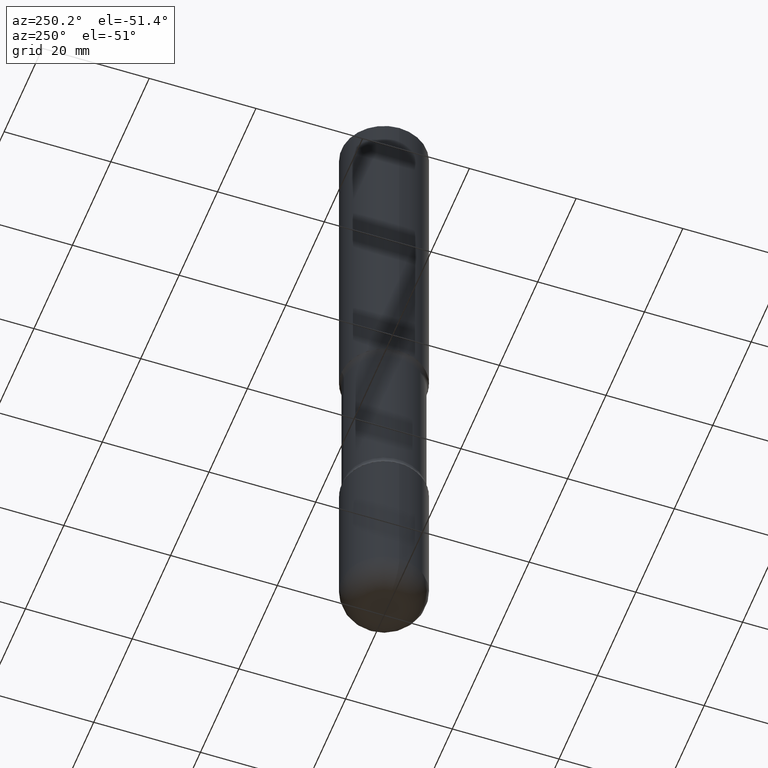
[diagram: clean part render]
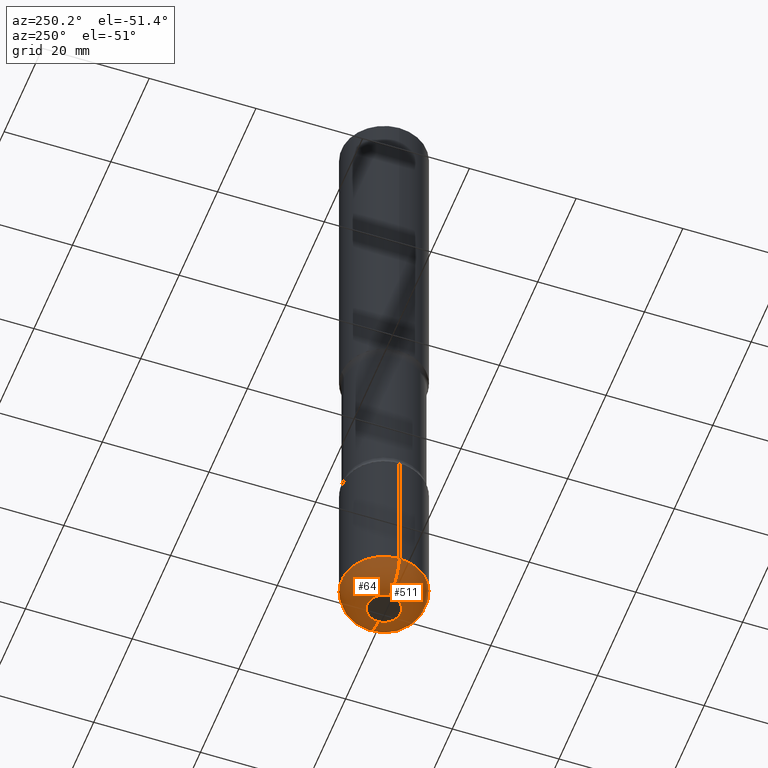
[diagram: same view with one multi-face feature highlighted, each face labeled with its STEP entity id]
A machine part, auxiliary view. The highlighted faces form ONE feature: a constant-radius fillet chain: 2 tangent blend faces with common blend radius 4.826 mm. The faces share edges in the B-rep.
Their STEP definitions:
[1] entity #64 (Torus):
#4 = DIRECTION ( 'NONE',  ( -2.445468806185136597E-29, 3.491481338843145583E-15, 1.000000000000000000 ) ) ;
#13 = CIRCLE ( 'NONE', #206, 0.3125000000000002220 ) ;
#18 = DIRECTION ( 'NONE',  ( -2.445468806185136597E-29, 3.491481338843145583E-15, 1.000000000000000000 ) ) ;
#54 = ORIENTED_EDGE ( 'NONE', *, *, #382, .F. ) ;
#64 = ADVANCED_FACE ( 'NONE', ( #162 ), #367, .T. ) ;
#69 = AXIS2_PLACEMENT_3D ( 'NONE', #490, #18, #273 ) ;
#86 = DIRECTION ( 'NONE',  ( -6.982962677686266711E-15, -1.000000000000000000, 3.491481338843145583E-15 ) ) ;
#96 = CARTESIAN_POINT ( 'NONE',  ( 0.3125000000000001665, -1.897620107661249005E-14, -4.810000000000000497 ) ) ;
#99 = AXIS2_PLACEMENT_3D ( 'NONE', #310, #86, #550 ) ;
#112 = EDGE_CURVE ( 'NONE', #348, #518, #341, .T. ) ;
#139 = DIRECTION ( 'NONE',  ( 1.000000000000000000, -6.982962677686264344E-15, 0.000000000000000000 ) ) ;
#149 = CARTESIAN_POINT ( 'NONE',  ( -0.1225000000000003308, -1.558028551674741034E-14, -5.000000000000000000 ) ) ;
#162 = FACE_OUTER_BOUND ( 'NONE', #361, .T. ) ;
#179 = CARTESIAN_POINT ( 'NONE',  ( 0.1225000000000003308, -1.831281962223229977E-14, -5.000000000000000000 ) ) ;
#186 = EDGE_CURVE ( 'NONE', #389, #388, #258, .T. ) ;
#206 = AXIS2_PLACEMENT_3D ( 'NONE', #520, #378, #139 ) ;
#257 = ORIENTED_EDGE ( 'NONE', *, *, #112, .T. ) ;
#258 = CIRCLE ( 'NONE', #99, 0.1899999999999998634 ) ;
#265 = DIRECTION ( 'NONE',  ( 1.000000000000000000, -6.982962677686262766E-15, 0.000000000000000000 ) ) ;
#270 = AXIS2_PLACEMENT_3D ( 'NONE', #540, #281, #286 ) ;
#271 = CIRCLE ( 'NONE', #465, 0.1225000000000003308 ) ;
#273 = DIRECTION ( 'NONE',  ( 1.000000000000000000, -6.982962677686265922E-15, 4.883557194083112340E-29 ) ) ;
#281 = DIRECTION ( 'NONE',  ( 7.105427357601001859E-15, 1.000000000000000000, -3.491481338843145583E-15 ) ) ;
#286 = DIRECTION ( 'NONE',  ( -1.000000000000000000, 7.105427357601003436E-15, 0.000000000000000000 ) ) ;
#310 = CARTESIAN_POINT ( 'NONE',  ( 0.1225000000000003031, -1.764943816785210001E-14, -4.810000000000000497 ) ) ;
#335 = EDGE_CURVE ( 'NONE', #389, #348, #271, .T. ) ;
#339 = ORIENTED_EDGE ( 'NONE', *, *, #186, .F. ) ;
#340 = CARTESIAN_POINT ( 'NONE',  ( -0.3125000000000001665, -1.457357919058521389E-14, -4.810000000000000497 ) ) ;
#341 = CIRCLE ( 'NONE', #270, 0.1899999999999998634 ) ;
#348 = VERTEX_POINT ( 'NONE', #149 ) ;
#361 = EDGE_LOOP ( 'NONE', ( #519, #257, #54, #339 ) ) ;
#367 = TOROIDAL_SURFACE ( 'NONE', #69, 0.1225000000000003031, 0.1899999999999998912 ) ;
#378 = DIRECTION ( 'NONE',  ( -2.445468806185136597E-29, 3.491481338843145583E-15, 1.000000000000000000 ) ) ;
#382 = EDGE_CURVE ( 'NONE', #388, #518, #13, .T. ) ;
#388 = VERTEX_POINT ( 'NONE', #96 ) ;
#389 = VERTEX_POINT ( 'NONE', #179 ) ;
#465 = AXIS2_PLACEMENT_3D ( 'NONE', #485, #4, #265 ) ;
#485 = CARTESIAN_POINT ( 'NONE',  ( 1.222734403092568523E-28, -1.745740669421572989E-14, -5.000000000000000000 ) ) ;
#490 = CARTESIAN_POINT ( 'NONE',  ( 1.176270495775050811E-28, -1.679402523983553013E-14, -4.810000000000000497 ) ) ;
#518 = VERTEX_POINT ( 'NONE', #340 ) ;
#519 = ORIENTED_EDGE ( 'NONE', *, *, #335, .T. ) ;
#520 = CARTESIAN_POINT ( 'NONE',  ( 1.176270495775050811E-28, -1.679402523983553013E-14, -4.810000000000000497 ) ) ;
#540 = CARTESIAN_POINT ( 'NONE',  ( -0.1225000000000003031, -1.592361038852940387E-14, -4.810000000000000497 ) ) ;
#550 = DIRECTION ( 'NONE',  ( 1.000000000000000000, -6.982962677686266711E-15, 0.000000000000000000 ) ) ;
[2] entity #511 (Torus):
#8 = ORIENTED_EDGE ( 'NONE', *, *, #112, .F. ) ;
#86 = DIRECTION ( 'NONE',  ( -6.982962677686266711E-15, -1.000000000000000000, 3.491481338843145583E-15 ) ) ;
#96 = CARTESIAN_POINT ( 'NONE',  ( 0.3125000000000001665, -1.897620107661249005E-14, -4.810000000000000497 ) ) ;
#99 = AXIS2_PLACEMENT_3D ( 'NONE', #310, #86, #550 ) ;
#100 = DIRECTION ( 'NONE',  ( -2.445468806185136597E-29, 3.491481338843145583E-15, 1.000000000000000000 ) ) ;
#101 = ORIENTED_EDGE ( 'NONE', *, *, #443, .T. ) ;
#112 = EDGE_CURVE ( 'NONE', #348, #518, #341, .T. ) ;
#146 = ORIENTED_EDGE ( 'NONE', *, *, #186, .T. ) ;
#149 = CARTESIAN_POINT ( 'NONE',  ( -0.1225000000000003308, -1.558028551674741034E-14, -5.000000000000000000 ) ) ;
#155 = EDGE_LOOP ( 'NONE', ( #8, #101, #146, #302 ) ) ;
#160 = TOROIDAL_SURFACE ( 'NONE', #536, 0.1225000000000003031, 0.1899999999999998912 ) ;
#161 = CARTESIAN_POINT ( 'NONE',  ( 1.176270495775050811E-28, -1.679402523983553013E-14, -4.810000000000000497 ) ) ;
#179 = CARTESIAN_POINT ( 'NONE',  ( 0.1225000000000003308, -1.831281962223229977E-14, -5.000000000000000000 ) ) ;
#186 = EDGE_CURVE ( 'NONE', #389, #388, #258, .T. ) ;
#191 = EDGE_CURVE ( 'NONE', #518, #388, #512, .T. ) ;
#209 = CARTESIAN_POINT ( 'NONE',  ( 1.176270495775050811E-28, -1.679402523983553013E-14, -4.810000000000000497 ) ) ;
#221 = DIRECTION ( 'NONE',  ( 1.000000000000000000, -6.982962677686262766E-15, 0.000000000000000000 ) ) ;
#258 = CIRCLE ( 'NONE', #99, 0.1899999999999998634 ) ;
#270 = AXIS2_PLACEMENT_3D ( 'NONE', #540, #281, #286 ) ;
#276 = CARTESIAN_POINT ( 'NONE',  ( 1.222734403092568523E-28, -1.745740669421572989E-14, -5.000000000000000000 ) ) ;
#278 = CIRCLE ( 'NONE', #526, 0.1225000000000003308 ) ;
#281 = DIRECTION ( 'NONE',  ( 7.105427357601001859E-15, 1.000000000000000000, -3.491481338843145583E-15 ) ) ;
#286 = DIRECTION ( 'NONE',  ( -1.000000000000000000, 7.105427357601003436E-15, 0.000000000000000000 ) ) ;
#293 = DIRECTION ( 'NONE',  ( -2.445468806185136597E-29, 3.491481338843145583E-15, 1.000000000000000000 ) ) ;
#302 = ORIENTED_EDGE ( 'NONE', *, *, #191, .F. ) ;
#310 = CARTESIAN_POINT ( 'NONE',  ( 0.1225000000000003031, -1.764943816785210001E-14, -4.810000000000000497 ) ) ;
#340 = CARTESIAN_POINT ( 'NONE',  ( -0.3125000000000001665, -1.457357919058521389E-14, -4.810000000000000497 ) ) ;
#341 = CIRCLE ( 'NONE', #270, 0.1899999999999998634 ) ;
#348 = VERTEX_POINT ( 'NONE', #149 ) ;
#388 = VERTEX_POINT ( 'NONE', #96 ) ;
#389 = VERTEX_POINT ( 'NONE', #179 ) ;
#395 = AXIS2_PLACEMENT_3D ( 'NONE', #209, #476, #481 ) ;
#443 = EDGE_CURVE ( 'NONE', #348, #389, #278, .T. ) ;
#473 = DIRECTION ( 'NONE',  ( 1.000000000000000000, -6.982962677686265922E-15, 4.883557194083112340E-29 ) ) ;
#476 = DIRECTION ( 'NONE',  ( -2.445468806185136597E-29, 3.491481338843145583E-15, 1.000000000000000000 ) ) ;
#481 = DIRECTION ( 'NONE',  ( 1.000000000000000000, -6.982962677686264344E-15, 0.000000000000000000 ) ) ;
#511 = ADVANCED_FACE ( 'NONE', ( #537 ), #160, .T. ) ;
#512 = CIRCLE ( 'NONE', #395, 0.3125000000000002220 ) ;
#518 = VERTEX_POINT ( 'NONE', #340 ) ;
#526 = AXIS2_PLACEMENT_3D ( 'NONE', #276, #100, #221 ) ;
#536 = AXIS2_PLACEMENT_3D ( 'NONE', #161, #293, #473 ) ;
#537 = FACE_OUTER_BOUND ( 'NONE', #155, .T. ) ;
#540 = CARTESIAN_POINT ( 'NONE',  ( -0.1225000000000003031, -1.592361038852940387E-14, -4.810000000000000497 ) ) ;
#550 = DIRECTION ( 'NONE',  ( 1.000000000000000000, -6.982962677686266711E-15, 0.000000000000000000 ) ) ;